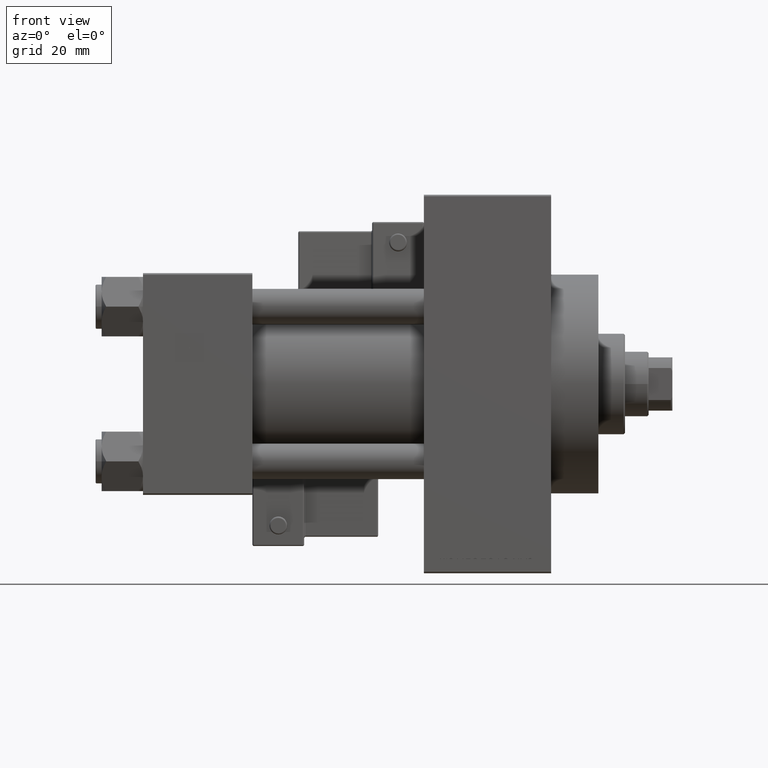
[diagram: clean part render]
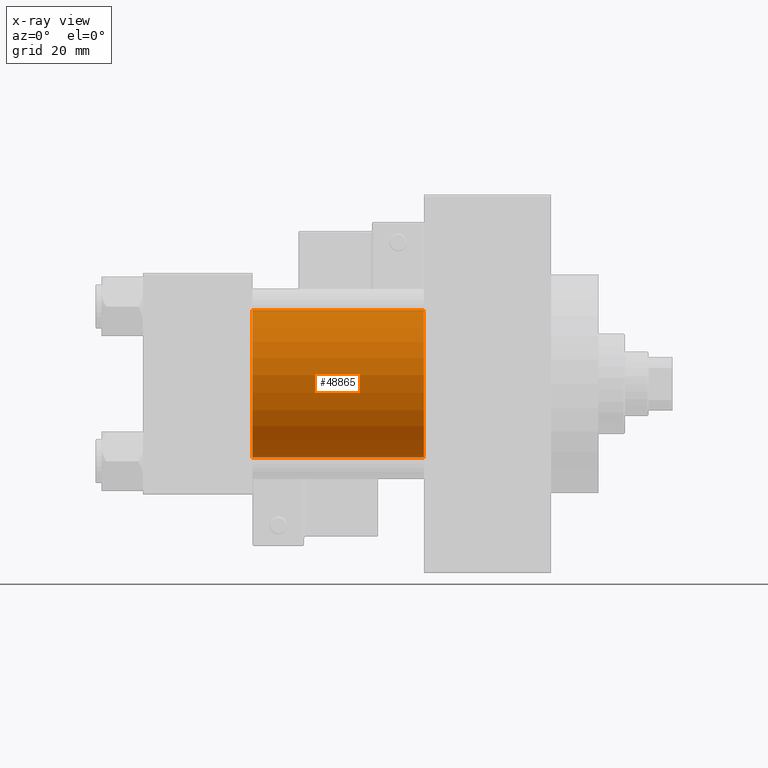
[diagram: x-ray — body ghosted, one internal face saturated and labeled with its STEP entity id]
A machine part, front view, then the same camera in x-ray: the body is ghosted and one INTERNAL B-rep face — a face not visible from any outside direction — is saturated and labeled: STEP entity #48865.
In plain terms, the highlighted cylindrical surface (partial cylindrical patch) has radius 25 mm, axis along (-1, -0, -0).
Its self-contained STEP definition (entity closure, byte-faithful):
#952 = CYLINDRICAL_SURFACE ( 'NONE', #7287, 25.00000000000000000 ) ;
#2350 = AXIS2_PLACEMENT_3D ( 'NONE', #17536, #9741, #12869 ) ;
#3667 = VERTEX_POINT ( 'NONE', #45287 ) ;
#6147 = CIRCLE ( 'NONE', #34430, 25.00000000000000000 ) ;
#7014 = LINE ( 'NONE', #39564, #28153 ) ;
#7287 = AXIS2_PLACEMENT_3D ( 'NONE', #47313, #23852, #11633 ) ;
#9741 = DIRECTION ( 'NONE',  ( 1.000000000000000000, 0.000000000000000000, 0.000000000000000000 ) ) ;
#11633 = DIRECTION ( 'NONE',  ( 0.000000000000000000, 0.000000000000000000, 1.000000000000000000 ) ) ;
#11948 = DIRECTION ( 'NONE',  ( -1.000000000000000000, -0.000000000000000000, -0.000000000000000000 ) ) ;
#12869 = DIRECTION ( 'NONE',  ( 0.000000000000000000, 0.000000000000000000, -1.000000000000000000 ) ) ;
#17536 = CARTESIAN_POINT ( 'NONE',  ( 37.00000000000000000, -2.602085213965210642E-15, 0.000000000000000000 ) ) ;
#18034 = VECTOR ( 'NONE', #21096, 1000.000000000000000 ) ;
#18121 = CIRCLE ( 'NONE', #2350, 25.00000000000000000 ) ;
#19856 = EDGE_CURVE ( 'NONE', #3667, #41224, #18121, .T. ) ;
#20736 = EDGE_CURVE ( 'NONE', #49857, #41224, #7014, .T. ) ;
#21096 = DIRECTION ( 'NONE',  ( -1.000000000000000000, -0.000000000000000000, -0.000000000000000000 ) ) ;
#22949 = DIRECTION ( 'NONE',  ( 1.000000000000000000, 0.000000000000000000, 0.000000000000000000 ) ) ;
#23852 = DIRECTION ( 'NONE',  ( -1.000000000000000000, -0.000000000000000000, -0.000000000000000000 ) ) ;
#28153 = VECTOR ( 'NONE', #11948, 1000.000000000000000 ) ;
#30455 = ORIENTED_EDGE ( 'NONE', *, *, #19856, .F. ) ;
#31574 = ORIENTED_EDGE ( 'NONE', *, *, #20736, .T. ) ;
#33766 = EDGE_LOOP ( 'NONE', ( #43458, #31574, #30455, #51322 ) ) ;
#34247 = CARTESIAN_POINT ( 'NONE',  ( 95.00000000000000000, -2.602085213965210642E-15, 25.00000000000000000 ) ) ;
#34430 = AXIS2_PLACEMENT_3D ( 'NONE', #50825, #22949, #46660 ) ;
#36029 = EDGE_CURVE ( 'NONE', #49014, #49857, #6147, .T. ) ;
#36617 = FACE_OUTER_BOUND ( 'NONE', #33766, .T. ) ;
#39564 = CARTESIAN_POINT ( 'NONE',  ( 95.00000000000000000, 4.595317839031718093E-16, -25.00000000000000000 ) ) ;
#40482 = CARTESIAN_POINT ( 'NONE',  ( 95.00000000000000000, 4.595317839031718093E-16, -25.00000000000000000 ) ) ;
#41167 = LINE ( 'NONE', #48965, #18034 ) ;
#41224 = VERTEX_POINT ( 'NONE', #41271 ) ;
#41271 = CARTESIAN_POINT ( 'NONE',  ( 37.00000000000000000, 4.595317839031718093E-16, -25.00000000000000000 ) ) ;
#43458 = ORIENTED_EDGE ( 'NONE', *, *, #36029, .T. ) ;
#45287 = CARTESIAN_POINT ( 'NONE',  ( 37.00000000000000000, -2.602085213965210642E-15, 25.00000000000000000 ) ) ;
#46660 = DIRECTION ( 'NONE',  ( 0.000000000000000000, 0.000000000000000000, -1.000000000000000000 ) ) ;
#47159 = EDGE_CURVE ( 'NONE', #49014, #3667, #41167, .T. ) ;
#47313 = CARTESIAN_POINT ( 'NONE',  ( 95.00000000000000000, -2.602085213965210642E-15, 0.000000000000000000 ) ) ;
#48865 = ADVANCED_FACE ( 'NONE', ( #36617 ), #952, .F. ) ;
#48965 = CARTESIAN_POINT ( 'NONE',  ( 95.00000000000000000, -2.602085213965210642E-15, 25.00000000000000000 ) ) ;
#49014 = VERTEX_POINT ( 'NONE', #34247 ) ;
#49857 = VERTEX_POINT ( 'NONE', #40482 ) ;
#50825 = CARTESIAN_POINT ( 'NONE',  ( 95.00000000000000000, -2.602085213965210642E-15, 0.000000000000000000 ) ) ;
#51322 = ORIENTED_EDGE ( 'NONE', *, *, #47159, .F. ) ;